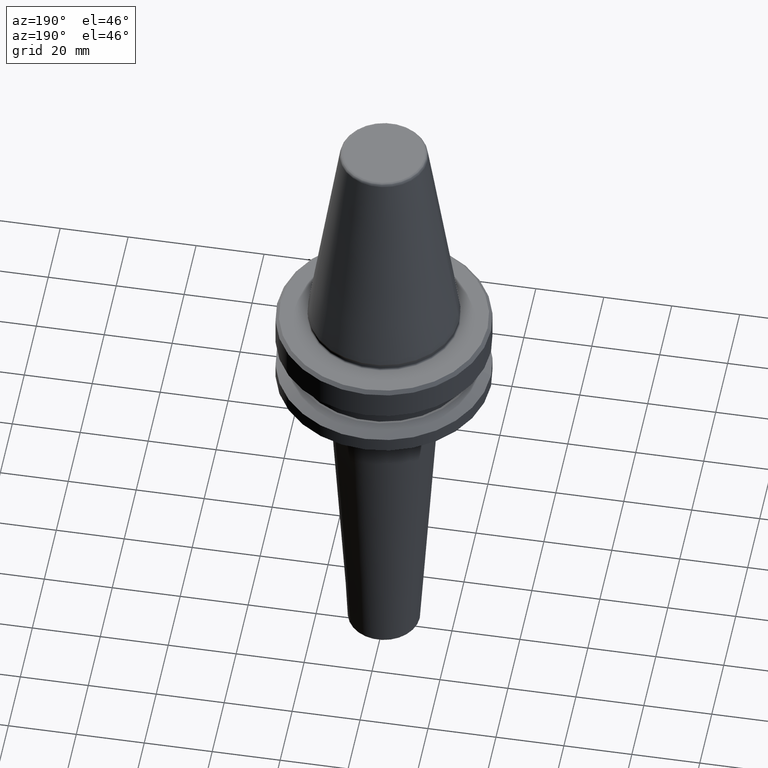
[diagram: clean part render]
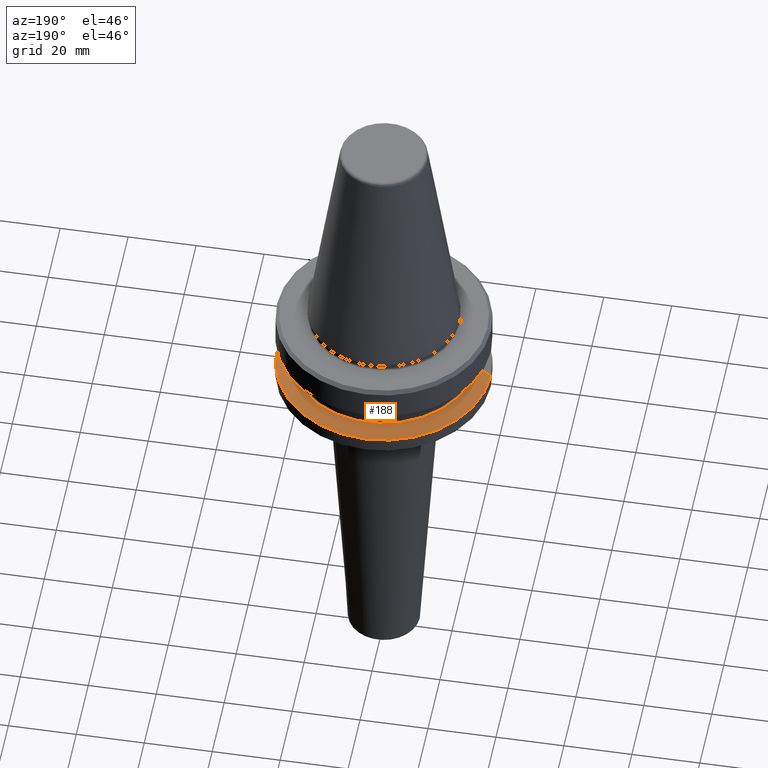
[diagram: same view with one face highlighted and labeled with its STEP entity id]
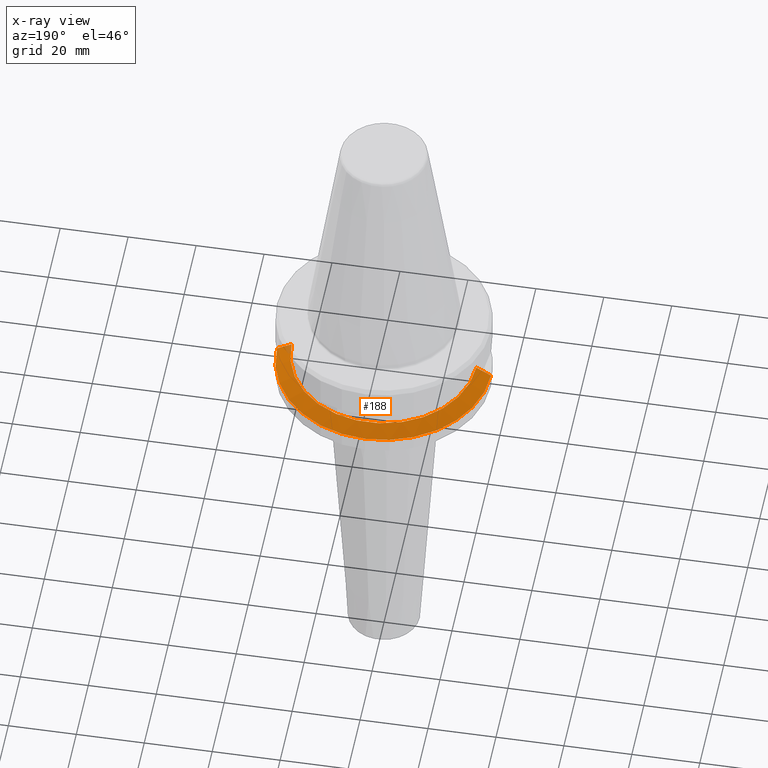
[diagram: x-ray of the same camera — body ghosted, the highlighted face saturated]
A machine part, auxiliary view. The second image highlights one B-rep face of the part: STEP entity #188.
The next image is the same camera in x-ray: the body ghosted, the highlighted face saturated — about 1% of this face is hidden behind the body in this view.
In plain terms, the highlighted conical surface has half-angle 60 deg.
Its self-contained STEP definition (entity closure, byte-faithful):
#65 = LINE ( 'NONE', #351, #144 ) ;
#68 = DIRECTION ( 'NONE',  ( 0.8660254037844332700, 1.060575238724900300E-016, -0.5000000000000093300 ) ) ;
#94 = EDGE_CURVE ( 'NONE', #182, #892, #65, .T. ) ;
#121 = VERTEX_POINT ( 'NONE', #731 ) ;
#144 = VECTOR ( 'NONE', #956, 1000.000000000000000 ) ;
#180 = EDGE_CURVE ( 'NONE', #743, #121, #657, .T. ) ;
#182 = VERTEX_POINT ( 'NONE', #733 ) ;
#188 = ADVANCED_FACE ( 'NONE', ( #453 ), #600, .T. ) ;
#255 = DIRECTION ( 'NONE',  ( -0.0000000000000000000, -0.0000000000000000000, 1.000000000000000000 ) ) ;
#260 = AXIS2_PLACEMENT_3D ( 'NONE', #824, #255, #390 ) ;
#273 = DIRECTION ( 'NONE',  ( 1.000000000000000000, 0.0000000000000000000, 0.0000000000000000000 ) ) ;
#305 = CIRCLE ( 'NONE', #260, 27.16962701892256100 ) ;
#333 = DIRECTION ( 'NONE',  ( 0.0000000000000000000, 0.0000000000000000000, -1.000000000000000000 ) ) ;
#341 = CARTESIAN_POINT ( 'NONE',  ( 27.16962701892256100, 3.592478546794633900E-015, -84.50000000000068200 ) ) ;
#351 = CARTESIAN_POINT ( 'NONE',  ( -31.50000000000008500, 0.0000000000000000000, -87.00014200631733300 ) ) ;
#390 = DIRECTION ( 'NONE',  ( 1.000000000000000000, 0.0000000000000000000, 0.0000000000000000000 ) ) ;
#393 = EDGE_CURVE ( 'NONE', #121, #892, #760, .T. ) ;
#427 = ORIENTED_EDGE ( 'NONE', *, *, #94, .F. ) ;
#453 = FACE_OUTER_BOUND ( 'NONE', #485, .T. ) ;
#485 = EDGE_LOOP ( 'NONE', ( #958, #907, #899, #427 ) ) ;
#536 = CARTESIAN_POINT ( 'NONE',  ( -31.50000000000008500, 3.857637417314172900E-015, -87.00014200631733300 ) ) ;
#581 = DIRECTION ( 'NONE',  ( -1.000000000000000000, 0.0000000000000000000, 0.0000000000000000000 ) ) ;
#600 = CONICAL_SURFACE ( 'NONE', #1017, 31.50000000000008500, 1.047197551196587000 ) ;
#649 = CARTESIAN_POINT ( 'NONE',  ( 31.50000000000008500, 3.857637417314172900E-015, -87.00014200631733300 ) ) ;
#657 = LINE ( 'NONE', #649, #859 ) ;
#726 = EDGE_CURVE ( 'NONE', #743, #182, #305, .T. ) ;
#731 = CARTESIAN_POINT ( 'NONE',  ( 31.50000000000008500, 0.0000000000000000000, -87.00014200631733300 ) ) ;
#733 = CARTESIAN_POINT ( 'NONE',  ( -27.16962701892256100, 0.0000000000000000000, -84.50000000000068200 ) ) ;
#740 = AXIS2_PLACEMENT_3D ( 'NONE', #908, #855, #273 ) ;
#743 = VERTEX_POINT ( 'NONE', #341 ) ;
#760 = CIRCLE ( 'NONE', #740, 31.50000000000008500 ) ;
#819 = CARTESIAN_POINT ( 'NONE',  ( 0.0000000000000000000, 0.0000000000000000000, -87.00014200631733300 ) ) ;
#824 = CARTESIAN_POINT ( 'NONE',  ( 0.0000000000000000000, 0.0000000000000000000, -84.50000000000068200 ) ) ;
#855 = DIRECTION ( 'NONE',  ( -0.0000000000000000000, -0.0000000000000000000, 1.000000000000000000 ) ) ;
#859 = VECTOR ( 'NONE', #68, 1000.000000000000000 ) ;
#892 = VERTEX_POINT ( 'NONE', #536 ) ;
#899 = ORIENTED_EDGE ( 'NONE', *, *, #393, .T. ) ;
#907 = ORIENTED_EDGE ( 'NONE', *, *, #180, .T. ) ;
#908 = CARTESIAN_POINT ( 'NONE',  ( 0.0000000000000000000, 0.0000000000000000000, -87.00014200631733300 ) ) ;
#956 = DIRECTION ( 'NONE',  ( -0.8660254037844332700, 0.0000000000000000000, -0.5000000000000093300 ) ) ;
#958 = ORIENTED_EDGE ( 'NONE', *, *, #726, .F. ) ;
#1017 = AXIS2_PLACEMENT_3D ( 'NONE', #819, #333, #581 ) ;